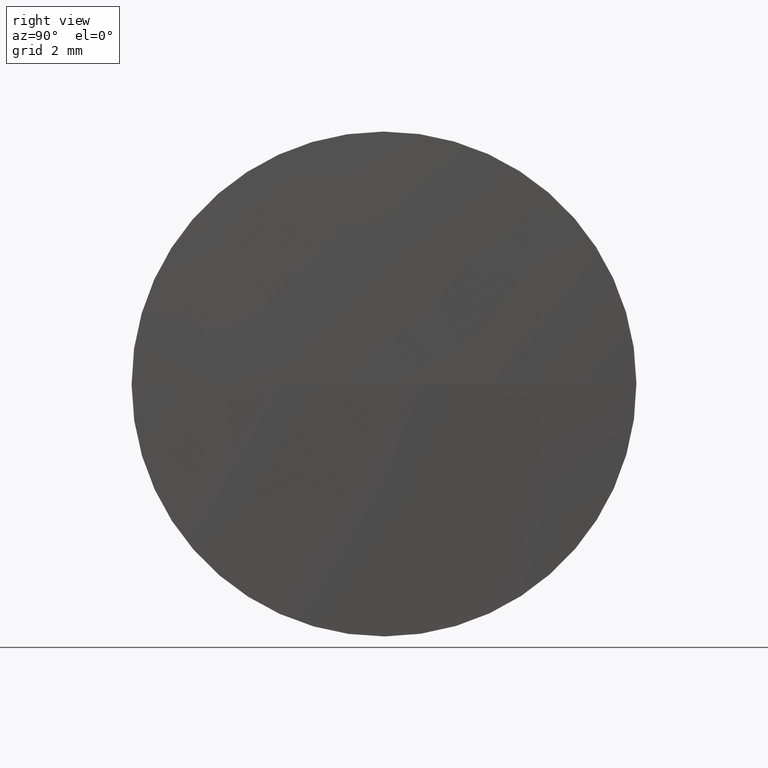
[diagram: clean part render]
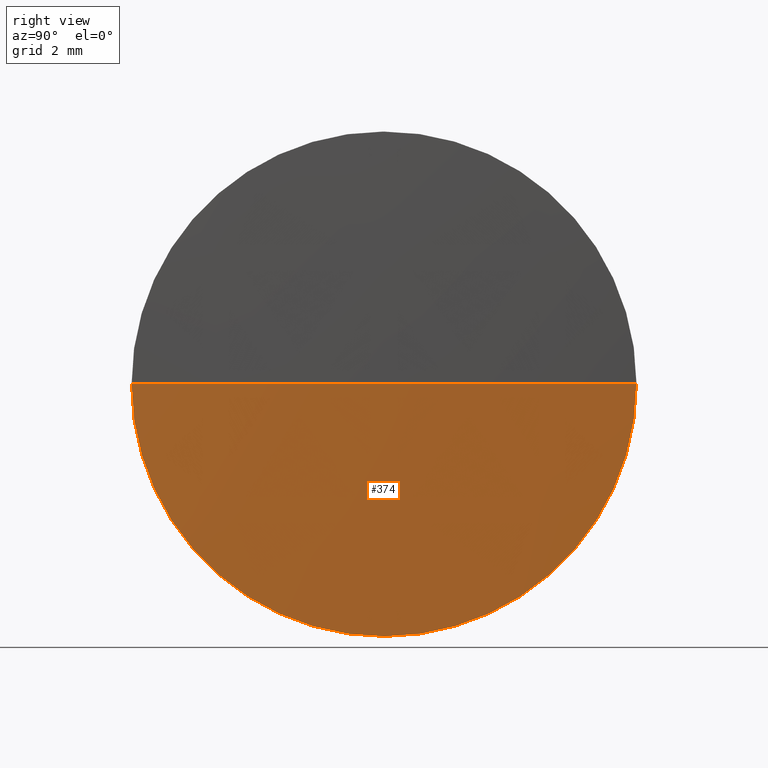
[diagram: same view with one face highlighted and labeled with its STEP entity id]
A machine part, right view. The second image highlights one B-rep face of the part: STEP entity #374.
In plain terms, the highlighted spherical surface has radius 177.29 mm.
Its self-contained STEP definition (entity closure, byte-faithful):
#21 = CARTESIAN_POINT ( 'NONE',  ( 4.764605047991459230, 13.45546810994060039, 0.000000000000000000 ) ) ;
#27 = CARTESIAN_POINT ( 'NONE',  ( -172.4116394093285010, 7.105468109940519028, 0.000000000000000000 ) ) ;
#39 = DIRECTION ( 'NONE',  ( -1.000000000000000000, -0.000000000000000000, -0.000000000000000000 ) ) ;
#66 = DIRECTION ( 'NONE',  ( 0.000000000000000000, 1.000000000000000000, 0.000000000000000000 ) ) ;
#82 = CARTESIAN_POINT ( 'NONE',  ( 4.764605047991442355, 7.105468109940519028, 0.000000000000000000 ) ) ;
#110 = DIRECTION ( 'NONE',  ( -0.000000000000000000, 0.000000000000000000, -1.000000000000000000 ) ) ;
#112 = AXIS2_PLACEMENT_3D ( 'NONE', #427, #228, #196 ) ;
#128 = EDGE_CURVE ( 'NONE', #183, #242, #375, .T. ) ;
#129 = CARTESIAN_POINT ( 'NONE',  ( 4.878360590671509733, 7.105468109940529686, 0.000000000000000000 ) ) ;
#138 = CARTESIAN_POINT ( 'NONE',  ( -172.4116394093285010, 7.105468109940519028, 0.000000000000000000 ) ) ;
#143 = FACE_OUTER_BOUND ( 'NONE', #306, .T. ) ;
#146 = AXIS2_PLACEMENT_3D ( 'NONE', #82, #282, #319 ) ;
#160 = CIRCLE ( 'NONE', #146, 6.349999999999999645 ) ;
#174 = CARTESIAN_POINT ( 'NONE',  ( 4.764605047991442355, 7.105468109940519028, 0.000000000000000000 ) ) ;
#183 = VERTEX_POINT ( 'NONE', #129 ) ;
#196 = DIRECTION ( 'NONE',  ( 0.000000000000000000, 1.000000000000000000, 1.224646799147353454E-16 ) ) ;
#208 = DIRECTION ( 'NONE',  ( 0.000000000000000000, 0.000000000000000000, 1.000000000000000000 ) ) ;
#228 = DIRECTION ( 'NONE',  ( 0.000000000000000000, 1.224646799147353207E-16, -1.000000000000000000 ) ) ;
#233 = EDGE_CURVE ( 'NONE', #183, #263, #236, .T. ) ;
#236 = CIRCLE ( 'NONE', #112, 177.2899999999999920 ) ;
#242 = VERTEX_POINT ( 'NONE', #21 ) ;
#245 = ORIENTED_EDGE ( 'NONE', *, *, #128, .F. ) ;
#248 = VERTEX_POINT ( 'NONE', #429 ) ;
#263 = VERTEX_POINT ( 'NONE', #437 ) ;
#282 = DIRECTION ( 'NONE',  ( -1.000000000000000000, -0.000000000000000000, -0.000000000000000000 ) ) ;
#292 = ORIENTED_EDGE ( 'NONE', *, *, #359, .F. ) ;
#306 = EDGE_LOOP ( 'NONE', ( #245, #423, #355, #292 ) ) ;
#316 = AXIS2_PLACEMENT_3D ( 'NONE', #174, #39, #208 ) ;
#319 = DIRECTION ( 'NONE',  ( 0.000000000000000000, 0.000000000000000000, 1.000000000000000000 ) ) ;
#333 = DIRECTION ( 'NONE',  ( -0.000000000000000000, 0.000000000000000000, 1.000000000000000000 ) ) ;
#353 = CIRCLE ( 'NONE', #316, 6.349999999999999645 ) ;
#355 = ORIENTED_EDGE ( 'NONE', *, *, #426, .F. ) ;
#359 = EDGE_CURVE ( 'NONE', #242, #248, #353, .T. ) ;
#368 = SPHERICAL_SURFACE ( 'NONE', #386, 177.2899999999999920 ) ;
#374 = ADVANCED_FACE ( 'NONE', ( #143 ), #368, .T. ) ;
#375 = CIRCLE ( 'NONE', #384, 177.2899999999999920 ) ;
#384 = AXIS2_PLACEMENT_3D ( 'NONE', #27, #333, #434 ) ;
#386 = AXIS2_PLACEMENT_3D ( 'NONE', #138, #110, #66 ) ;
#423 = ORIENTED_EDGE ( 'NONE', *, *, #233, .T. ) ;
#426 = EDGE_CURVE ( 'NONE', #248, #263, #160, .T. ) ;
#427 = CARTESIAN_POINT ( 'NONE',  ( -172.4116394093285010, 7.105468109940519028, 0.000000000000000000 ) ) ;
#429 = CARTESIAN_POINT ( 'NONE',  ( 4.764605047991442355, 7.105468109940519916, -6.349999999999999645 ) ) ;
#434 = DIRECTION ( 'NONE',  ( 1.000000000000000000, 0.000000000000000000, 0.000000000000000000 ) ) ;
#437 = CARTESIAN_POINT ( 'NONE',  ( 4.764605047991459230, 0.7554681099404365607, -7.776507174585793729E-16 ) ) ;